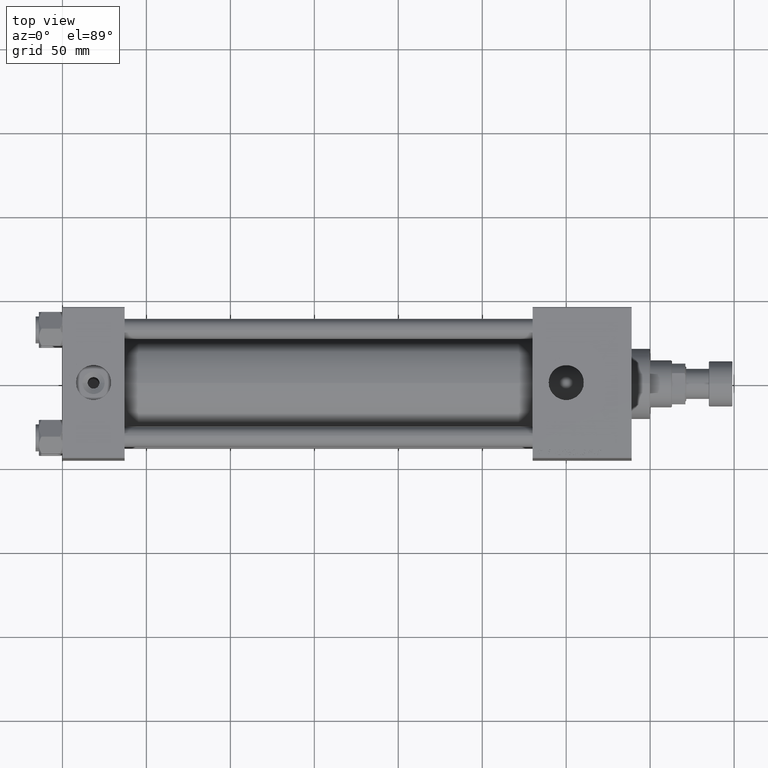
[diagram: clean part render]
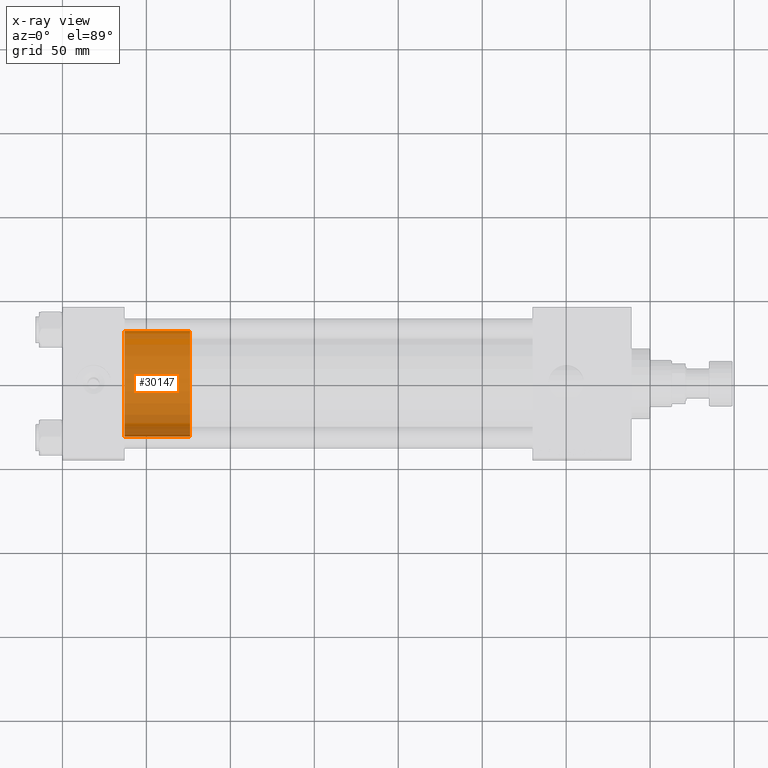
[diagram: x-ray — body ghosted, one internal face saturated and labeled with its STEP entity id]
A machine part, top view, then the same camera in x-ray: the body is ghosted and one INTERNAL B-rep face — a face not visible from any outside direction — is saturated and labeled: STEP entity #30147.
In plain terms, the highlighted cylindrical surface (partial cylindrical patch) has radius 31.5 mm, axis along (-1, 0, 0).
Its self-contained STEP definition (entity closure, byte-faithful):
#3428 = VECTOR ( 'NONE', #46093, 1000.000000000000000 ) ;
#3447 = CARTESIAN_POINT ( 'NONE',  ( 0.000000000000000000, 0.000000000000000000, 39.00000000000000000 ) ) ;
#5799 = VERTEX_POINT ( 'NONE', #35277 ) ;
#6027 = ORIENTED_EDGE ( 'NONE', *, *, #18454, .T. ) ;
#6658 = DIRECTION ( 'NONE',  ( -0.000000000000000000, -0.000000000000000000, -1.000000000000000000 ) ) ;
#6873 = CARTESIAN_POINT ( 'NONE',  ( -31.50000000000000000, 0.000000000000000000, 39.00000000000000000 ) ) ;
#12023 = AXIS2_PLACEMENT_3D ( 'NONE', #29869, #13877, #14666 ) ;
#12301 = ORIENTED_EDGE ( 'NONE', *, *, #48075, .T. ) ;
#13877 = DIRECTION ( 'NONE',  ( 0.000000000000000000, 0.000000000000000000, 1.000000000000000000 ) ) ;
#14666 = DIRECTION ( 'NONE',  ( 1.000000000000000000, 0.000000000000000000, 0.000000000000000000 ) ) ;
#14667 = FACE_OUTER_BOUND ( 'NONE', #17541, .T. ) ;
#14732 = CARTESIAN_POINT ( 'NONE',  ( 0.000000000000000000, 0.000000000000000000, 0.000000000000000000 ) ) ;
#15709 = DIRECTION ( 'NONE',  ( -1.000000000000000000, 0.000000000000000000, 0.000000000000000000 ) ) ;
#17029 = CIRCLE ( 'NONE', #30643, 31.50000000000000000 ) ;
#17379 = VERTEX_POINT ( 'NONE', #51598 ) ;
#17541 = EDGE_LOOP ( 'NONE', ( #23033, #12301, #6027, #45316 ) ) ;
#18454 = EDGE_CURVE ( 'NONE', #32249, #17379, #17029, .T. ) ;
#22649 = EDGE_CURVE ( 'NONE', #49848, #17379, #29547, .T. ) ;
#23033 = ORIENTED_EDGE ( 'NONE', *, *, #48723, .F. ) ;
#26695 = AXIS2_PLACEMENT_3D ( 'NONE', #3447, #6658, #15709 ) ;
#27324 = VECTOR ( 'NONE', #48924, 1000.000000000000000 ) ;
#29547 = LINE ( 'NONE', #45583, #3428 ) ;
#29869 = CARTESIAN_POINT ( 'NONE',  ( 0.000000000000000000, 0.000000000000000000, 39.00000000000000000 ) ) ;
#30147 = ADVANCED_FACE ( 'NONE', ( #14667 ), #39453, .T. ) ;
#30643 = AXIS2_PLACEMENT_3D ( 'NONE', #14732, #52336, #30993 ) ;
#30993 = DIRECTION ( 'NONE',  ( 1.000000000000000000, 0.000000000000000000, 0.000000000000000000 ) ) ;
#32249 = VERTEX_POINT ( 'NONE', #50922 ) ;
#35277 = CARTESIAN_POINT ( 'NONE',  ( 31.50000000000000000, 3.857637417314162689E-15, 39.00000000000000000 ) ) ;
#39453 = CYLINDRICAL_SURFACE ( 'NONE', #26695, 31.50000000000000000 ) ;
#40392 = CARTESIAN_POINT ( 'NONE',  ( 31.50000000000000000, 3.857637417314162689E-15, 39.00000000000000000 ) ) ;
#42718 = CIRCLE ( 'NONE', #12023, 31.50000000000000000 ) ;
#44400 = LINE ( 'NONE', #40392, #27324 ) ;
#45316 = ORIENTED_EDGE ( 'NONE', *, *, #22649, .F. ) ;
#45583 = CARTESIAN_POINT ( 'NONE',  ( -31.50000000000000000, 0.000000000000000000, 39.00000000000000000 ) ) ;
#46093 = DIRECTION ( 'NONE',  ( -0.000000000000000000, -0.000000000000000000, -1.000000000000000000 ) ) ;
#48075 = EDGE_CURVE ( 'NONE', #5799, #32249, #44400, .T. ) ;
#48723 = EDGE_CURVE ( 'NONE', #5799, #49848, #42718, .T. ) ;
#48924 = DIRECTION ( 'NONE',  ( -0.000000000000000000, -0.000000000000000000, -1.000000000000000000 ) ) ;
#49848 = VERTEX_POINT ( 'NONE', #6873 ) ;
#50922 = CARTESIAN_POINT ( 'NONE',  ( 31.50000000000000000, 3.857637417314162689E-15, 0.000000000000000000 ) ) ;
#51598 = CARTESIAN_POINT ( 'NONE',  ( -31.50000000000000000, 0.000000000000000000, 0.000000000000000000 ) ) ;
#52336 = DIRECTION ( 'NONE',  ( 0.000000000000000000, 0.000000000000000000, 1.000000000000000000 ) ) ;